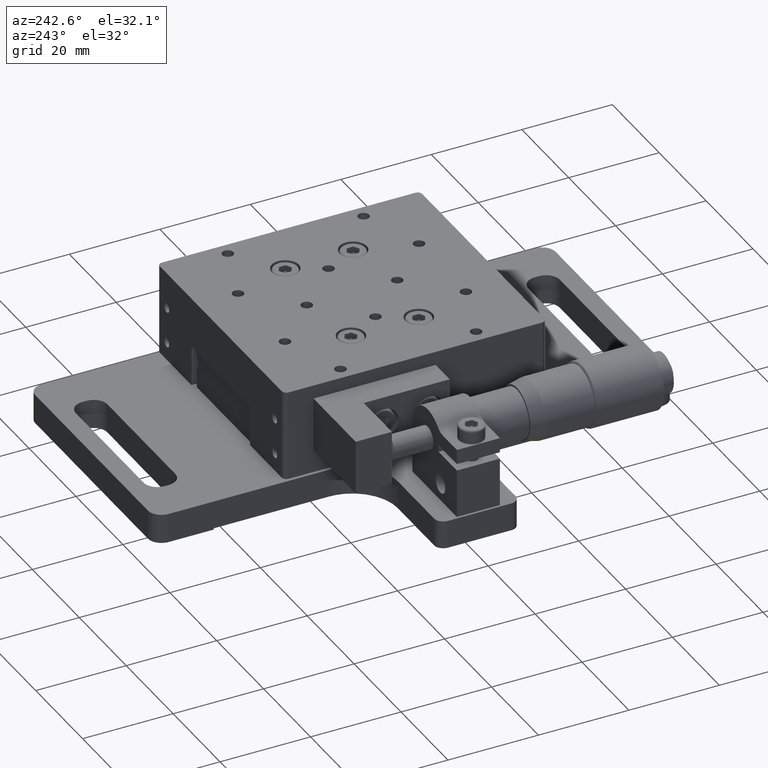
[diagram: clean part render]
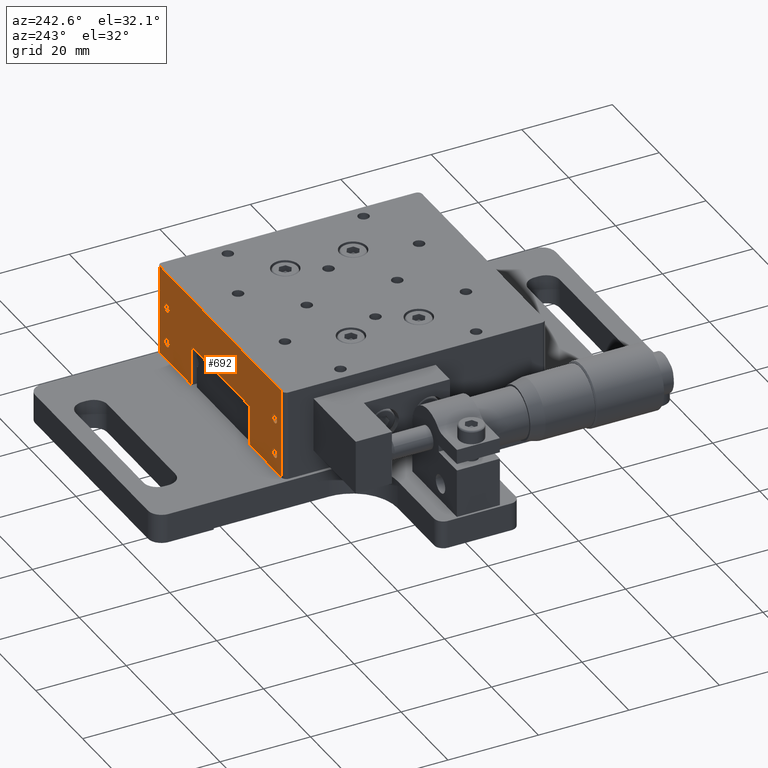
[diagram: same view with one face highlighted and labeled with its STEP entity id]
A machine part, auxiliary view. The second image highlights one B-rep face of the part: STEP entity #692.
In plain terms, the highlighted face is a freeform B-spline surface patch.
Its self-contained STEP definition (entity closure, byte-faithful):
#321=FACE_BOUND('',#2028,.T.);
#322=FACE_BOUND('',#2029,.T.);
#323=FACE_BOUND('',#2030,.T.);
#324=FACE_BOUND('',#2031,.T.);
#692=ADVANCED_FACE('',(#1313,#321,#322,#323,#324),#22482,.T.);
#1313=FACE_OUTER_BOUND('',#2027,.T.);
#2027=EDGE_LOOP('',(#4262,#4263,#4264,#4265,#4266,#4267,#4268,#4269));
#2028=EDGE_LOOP('',(#4270,#4271));
#2029=EDGE_LOOP('',(#4272,#4273));
#2030=EDGE_LOOP('',(#4274,#4275));
#2031=EDGE_LOOP('',(#4276,#4277));
#4262=ORIENTED_EDGE('',*,*,#19050,.F.);
#4263=ORIENTED_EDGE('',*,*,#18945,.F.);
#4264=ORIENTED_EDGE('',*,*,#19052,.F.);
#4265=ORIENTED_EDGE('',*,*,#19057,.F.);
#4266=ORIENTED_EDGE('',*,*,#19117,.F.);
#4267=ORIENTED_EDGE('',*,*,#19119,.F.);
#4268=ORIENTED_EDGE('',*,*,#19110,.F.);
#4269=ORIENTED_EDGE('',*,*,#18895,.F.);
#4270=ORIENTED_EDGE('',*,*,#19132,.T.);
#4271=ORIENTED_EDGE('',*,*,#18989,.F.);
#4272=ORIENTED_EDGE('',*,*,#19133,.T.);
#4273=ORIENTED_EDGE('',*,*,#18994,.F.);
#4274=ORIENTED_EDGE('',*,*,#19134,.T.);
#4275=ORIENTED_EDGE('',*,*,#19127,.F.);
#4276=ORIENTED_EDGE('',*,*,#19135,.T.);
#4277=ORIENTED_EDGE('',*,*,#19130,.F.);
#7139=PCURVE('',#22458,#10545);
#7214=PCURVE('',#22464,#10620);
#7273=PCURVE('',#22810,#10679);
#7278=PCURVE('',#22811,#10684);
#7442=PCURVE('',#22840,#10848);
#7447=PCURVE('',#22841,#10853);
#7454=PCURVE('',#22469,#10860);
#7613=PCURVE('',#22473,#11019);
#7621=PCURVE('',#22475,#11027);
#7625=PCURVE('',#22476,#11031);
#7662=PCURVE('',#22864,#11068);
#7666=PCURVE('',#22865,#11072);
#7668=PCURVE('',#22482,#11074);
#7669=PCURVE('',#22482,#11075);
#7670=PCURVE('',#22482,#11076);
#7671=PCURVE('',#22482,#11077);
#7672=PCURVE('',#22482,#11078);
#7673=PCURVE('',#22482,#11079);
#7674=PCURVE('',#22482,#11080);
#7675=PCURVE('',#22482,#11081);
#7676=PCURVE('',#22482,#11082);
#7677=PCURVE('',#22482,#11083);
#7678=PCURVE('',#22482,#11084);
#7679=PCURVE('',#22482,#11085);
#7680=PCURVE('',#22482,#11086);
#7681=PCURVE('',#22482,#11087);
#7682=PCURVE('',#22482,#11088);
#7683=PCURVE('',#22482,#11089);
#8591=PCURVE('',#22907,#11997);
#8596=PCURVE('',#22908,#12002);
#8611=PCURVE('',#22911,#12017);
#8615=PCURVE('',#22912,#12021);
#10545=DEFINITIONAL_REPRESENTATION('',(#13990),#46445);
#10620=DEFINITIONAL_REPRESENTATION('',(#14055),#46445);
#10679=DEFINITIONAL_REPRESENTATION('',(#14068),#46445);
#10684=DEFINITIONAL_REPRESENTATION('',(#14076),#46445);
#10848=DEFINITIONAL_REPRESENTATION('',(#14279),#46445);
#10853=DEFINITIONAL_REPRESENTATION('',(#14285),#46445);
#10860=DEFINITIONAL_REPRESENTATION('',(#14295),#46445);
#11019=DEFINITIONAL_REPRESENTATION('',(#14488),#46445);
#11027=DEFINITIONAL_REPRESENTATION('',(#14503),#46445);
#11031=DEFINITIONAL_REPRESENTATION('',(#14509),#46445);
#11068=DEFINITIONAL_REPRESENTATION('',(#14553),#46445);
#11072=DEFINITIONAL_REPRESENTATION('',(#14559),#46445);
#11074=DEFINITIONAL_REPRESENTATION('',(#14562),#46445);
#11075=DEFINITIONAL_REPRESENTATION('',(#14563),#46445);
#11076=DEFINITIONAL_REPRESENTATION('',(#14564),#46445);
#11077=DEFINITIONAL_REPRESENTATION('',(#14565),#46445);
#11078=DEFINITIONAL_REPRESENTATION('',(#14566),#46445);
#11079=DEFINITIONAL_REPRESENTATION('',(#14567),#46445);
#11080=DEFINITIONAL_REPRESENTATION('',(#14568),#46445);
#11081=DEFINITIONAL_REPRESENTATION('',(#14569),#46445);
#11082=DEFINITIONAL_REPRESENTATION('',(#20788),#46445);
#11083=DEFINITIONAL_REPRESENTATION('',(#20789),#46445);
#11084=DEFINITIONAL_REPRESENTATION('',(#20791),#46445);
#11085=DEFINITIONAL_REPRESENTATION('',(#20792),#46445);
#11086=DEFINITIONAL_REPRESENTATION('',(#20794),#46445);
#11087=DEFINITIONAL_REPRESENTATION('',(#20795),#46445);
#11088=DEFINITIONAL_REPRESENTATION('',(#20797),#46445);
#11089=DEFINITIONAL_REPRESENTATION('',(#20798),#46445);
#11997=DEFINITIONAL_REPRESENTATION('',(#15778),#46445);
#12002=DEFINITIONAL_REPRESENTATION('',(#15783),#46445);
#12017=DEFINITIONAL_REPRESENTATION('',(#15798),#46445);
#12021=DEFINITIONAL_REPRESENTATION('',(#15802),#46445);
#13989=B_SPLINE_CURVE_WITH_KNOTS('',1,(#35440,#35441),.UNSPECIFIED.,.F.,
 .F.,(2,2),(-13.4999999999999,0.),.UNSPECIFIED.);
#13990=B_SPLINE_CURVE_WITH_KNOTS('',1,(#35442,#35443),.UNSPECIFIED.,.F.,
 .F.,(2,2),(-13.4999999999999,0.),.UNSPECIFIED.);
#14054=B_SPLINE_CURVE_WITH_KNOTS('',1,(#35806,#35807),.UNSPECIFIED.,.F.,
 .F.,(2,2),(0.,52.),.UNSPECIFIED.);
#14055=B_SPLINE_CURVE_WITH_KNOTS('',1,(#35808,#35809),.UNSPECIFIED.,.F.,
 .F.,(2,2),(0.,52.),.UNSPECIFIED.);
#14068=B_SPLINE_CURVE_WITH_KNOTS('',1,(#36170,#36171),.UNSPECIFIED.,.F.,
 .F.,(2,2),(-3.16201300583813,0.),.UNSPECIFIED.);
#14076=B_SPLINE_CURVE_WITH_KNOTS('',1,(#36200,#36201),.UNSPECIFIED.,.F.,
 .F.,(2,2),(-3.16201300583813,0.),.UNSPECIFIED.);
#14278=B_SPLINE_CURVE_WITH_KNOTS('',1,(#36889,#36890),.UNSPECIFIED.,.F.,
 .F.,(2,2),(0.,20.),.UNSPECIFIED.);
#14279=B_SPLINE_CURVE_WITH_KNOTS('',1,(#36891,#36892),.UNSPECIFIED.,.F.,
 .F.,(2,2),(0.,20.),.UNSPECIFIED.);
#14284=B_SPLINE_CURVE_WITH_KNOTS('',1,(#36904,#36905),.UNSPECIFIED.,.F.,
 .F.,(2,2),(0.,20.),.UNSPECIFIED.);
#14285=B_SPLINE_CURVE_WITH_KNOTS('',1,(#36906,#36907),.UNSPECIFIED.,.F.,
 .F.,(2,2),(0.,20.),.UNSPECIFIED.);
#14294=B_SPLINE_CURVE_WITH_KNOTS('',1,(#36934,#36935),.UNSPECIFIED.,.F.,
 .F.,(2,2),(-13.5,0.),.UNSPECIFIED.);
#14295=B_SPLINE_CURVE_WITH_KNOTS('',1,(#36936,#36937),.UNSPECIFIED.,.F.,
 .F.,(2,2),(-13.5,0.),.UNSPECIFIED.);
#14487=B_SPLINE_CURVE_WITH_KNOTS('',1,(#37595,#37596),.UNSPECIFIED.,.F.,
 .F.,(2,2),(-8.9,0.),.UNSPECIFIED.);
#14488=B_SPLINE_CURVE_WITH_KNOTS('',1,(#37597,#37598),.UNSPECIFIED.,.F.,
 .F.,(2,2),(-8.9,0.),.UNSPECIFIED.);
#14502=B_SPLINE_CURVE_WITH_KNOTS('',1,(#37625,#37626),.UNSPECIFIED.,.F.,
 .F.,(2,2),(-8.90000000000001,0.),.UNSPECIFIED.);
#14503=B_SPLINE_CURVE_WITH_KNOTS('',1,(#37627,#37628),.UNSPECIFIED.,.F.,
 .F.,(2,2),(-8.90000000000001,0.),.UNSPECIFIED.);
#14508=B_SPLINE_CURVE_WITH_KNOTS('',1,(#37637,#37638),.UNSPECIFIED.,.F.,
 .F.,(2,2),(-25.,0.),.UNSPECIFIED.);
#14509=B_SPLINE_CURVE_WITH_KNOTS('',1,(#37639,#37640),.UNSPECIFIED.,.F.,
 .F.,(2,2),(-25.,0.),.UNSPECIFIED.);
#14553=B_SPLINE_CURVE_WITH_KNOTS('',1,(#37744,#37745),.UNSPECIFIED.,.F.,
 .F.,(2,2),(-3.14159265358979,0.),.UNSPECIFIED.);
#14559=B_SPLINE_CURVE_WITH_KNOTS('',1,(#37773,#37774),.UNSPECIFIED.,.F.,
 .F.,(2,2),(-3.14159265358979,0.),.UNSPECIFIED.);
#14562=B_SPLINE_CURVE_WITH_KNOTS('',1,(#37779,#37780),.UNSPECIFIED.,.F.,
 .F.,(2,2),(0.,20.),.UNSPECIFIED.);
#14563=B_SPLINE_CURVE_WITH_KNOTS('',1,(#37781,#37782),.UNSPECIFIED.,.F.,
 .F.,(2,2),(0.,52.),.UNSPECIFIED.);
#14564=B_SPLINE_CURVE_WITH_KNOTS('',1,(#37783,#37784),.UNSPECIFIED.,.F.,
 .F.,(2,2),(0.,20.),.UNSPECIFIED.);
#14565=B_SPLINE_CURVE_WITH_KNOTS('',1,(#37785,#37786),.UNSPECIFIED.,.F.,
 .F.,(2,2),(-13.5,0.),.UNSPECIFIED.);
#14566=B_SPLINE_CURVE_WITH_KNOTS('',1,(#37787,#37788),.UNSPECIFIED.,.F.,
 .F.,(2,2),(-8.90000000000001,0.),.UNSPECIFIED.);
#14567=B_SPLINE_CURVE_WITH_KNOTS('',1,(#37789,#37790),.UNSPECIFIED.,.F.,
 .F.,(2,2),(-25.,0.),.UNSPECIFIED.);
#14568=B_SPLINE_CURVE_WITH_KNOTS('',1,(#37791,#37792),.UNSPECIFIED.,.F.,
 .F.,(2,2),(-8.9,0.),.UNSPECIFIED.);
#14569=B_SPLINE_CURVE_WITH_KNOTS('',1,(#37793,#37794),.UNSPECIFIED.,.F.,
 .F.,(2,2),(-13.4999999999999,0.),.UNSPECIFIED.);
#15778=B_SPLINE_CURVE_WITH_KNOTS('',1,(#40820,#40821),.UNSPECIFIED.,.F.,
 .F.,(2,2),(0.,3.16201300583813),.UNSPECIFIED.);
#15783=B_SPLINE_CURVE_WITH_KNOTS('',1,(#40832,#40833),.UNSPECIFIED.,.F.,
 .F.,(2,2),(0.,3.16201300583813),.UNSPECIFIED.);
#15798=B_SPLINE_CURVE_WITH_KNOTS('',1,(#40904,#40905),.UNSPECIFIED.,.F.,
 .F.,(2,2),(0.,3.14159265358979),.UNSPECIFIED.);
#15802=B_SPLINE_CURVE_WITH_KNOTS('',1,(#40924,#40925),.UNSPECIFIED.,.F.,
 .F.,(2,2),(0.,3.14159265358979),.UNSPECIFIED.);
#17158=SURFACE_CURVE('',#13989,(#7139,#7675),.PCURVE_S1.);
#17208=SURFACE_CURVE('',#14054,(#7214,#7669),.PCURVE_S1.);
#17252=SURFACE_CURVE('',#20743,(#7273,#7677),.PCURVE_S1.);
#17257=SURFACE_CURVE('',#20745,(#7278,#7679),.PCURVE_S1.);
#17313=SURFACE_CURVE('',#14278,(#7442,#7668),.PCURVE_S1.);
#17315=SURFACE_CURVE('',#14284,(#7447,#7670),.PCURVE_S1.);
#17320=SURFACE_CURVE('',#14294,(#7454,#7671),.PCURVE_S1.);
#17373=SURFACE_CURVE('',#14487,(#7613,#7674),.PCURVE_S1.);
#17380=SURFACE_CURVE('',#14502,(#7621,#7672),.PCURVE_S1.);
#17382=SURFACE_CURVE('',#14508,(#7625,#7673),.PCURVE_S1.);
#17390=SURFACE_CURVE('',#20785,(#7662,#7681),.PCURVE_S1.);
#17393=SURFACE_CURVE('',#20786,(#7666,#7683),.PCURVE_S1.);
#17395=SURFACE_CURVE('',#20787,(#7676,#8591),.PCURVE_S1.);
#17396=SURFACE_CURVE('',#20790,(#7678,#8596),.PCURVE_S1.);
#17397=SURFACE_CURVE('',#20793,(#7680,#8611),.PCURVE_S1.);
#17398=SURFACE_CURVE('',#20796,(#7682,#8615),.PCURVE_S1.);
#18895=EDGE_CURVE('',#21734,#21735,#17158,.T.);
#18945=EDGE_CURVE('',#21772,#21773,#17208,.T.);
#18989=EDGE_CURVE('',#21801,#21800,#17252,.T.);
#18994=EDGE_CURVE('',#21804,#21803,#17257,.T.);
#19050=EDGE_CURVE('',#21773,#21734,#17313,.T.);
#19052=EDGE_CURVE('',#21840,#21772,#17315,.T.);
#19057=EDGE_CURVE('',#21843,#21840,#17320,.T.);
#19110=EDGE_CURVE('',#21735,#21879,#17373,.T.);
#19117=EDGE_CURVE('',#21883,#21843,#17380,.T.);
#19119=EDGE_CURVE('',#21879,#21883,#17382,.T.);
#19127=EDGE_CURVE('',#21887,#21886,#17390,.T.);
#19130=EDGE_CURVE('',#21889,#21888,#17393,.T.);
#19132=EDGE_CURVE('',#21801,#21800,#17395,.T.);
#19133=EDGE_CURVE('',#21804,#21803,#17396,.T.);
#19134=EDGE_CURVE('',#21887,#21886,#17397,.T.);
#19135=EDGE_CURVE('',#21889,#21888,#17398,.T.);
#20743=(
BOUNDED_CURVE()
B_SPLINE_CURVE(2,(#36165,#36166,#36167,#36168,#36169),.UNSPECIFIED.,.F.,
 .F.)
B_SPLINE_CURVE_WITH_KNOTS((3,2,3),(-3.16201300583813,-1.58100650291906,
0.),.UNSPECIFIED.)
CURVE()
GEOMETRIC_REPRESENTATION_ITEM()
RATIONAL_B_SPLINE_CURVE((1.,0.707106781186547,1.,0.707106781186547,1.))
REPRESENTATION_ITEM('')
);
#20745=(
BOUNDED_CURVE()
B_SPLINE_CURVE(2,(#36195,#36196,#36197,#36198,#36199),.UNSPECIFIED.,.F.,
 .F.)
B_SPLINE_CURVE_WITH_KNOTS((3,2,3),(-3.16201300583813,-1.58100650291906,
0.),.UNSPECIFIED.)
CURVE()
GEOMETRIC_REPRESENTATION_ITEM()
RATIONAL_B_SPLINE_CURVE((1.,0.707106781186548,1.,0.707106781186548,1.))
REPRESENTATION_ITEM('')
);
#20785=(
BOUNDED_CURVE()
B_SPLINE_CURVE(2,(#37739,#37740,#37741,#37742,#37743),.UNSPECIFIED.,.F.,
 .F.)
B_SPLINE_CURVE_WITH_KNOTS((3,2,3),(-3.14159265358979,-1.5707963267949,0.),
 .UNSPECIFIED.)
CURVE()
GEOMETRIC_REPRESENTATION_ITEM()
RATIONAL_B_SPLINE_CURVE((1.,0.707106781186548,1.,0.707106781186548,1.))
REPRESENTATION_ITEM('')
);
#20786=(
BOUNDED_CURVE()
B_SPLINE_CURVE(2,(#37768,#37769,#37770,#37771,#37772),.UNSPECIFIED.,.F.,
 .F.)
B_SPLINE_CURVE_WITH_KNOTS((3,2,3),(-3.14159265358979,-1.5707963267949,0.),
 .UNSPECIFIED.)
CURVE()
GEOMETRIC_REPRESENTATION_ITEM()
RATIONAL_B_SPLINE_CURVE((1.,0.707106781186548,1.,0.707106781186548,1.))
REPRESENTATION_ITEM('')
);
#20787=(
BOUNDED_CURVE()
B_SPLINE_CURVE(2,(#37795,#37796,#37797,#37798,#37799),.UNSPECIFIED.,.F.,
 .F.)
B_SPLINE_CURVE_WITH_KNOTS((3,2,3),(0.,1.58100650291906,3.16201300583813),
 .UNSPECIFIED.)
CURVE()
GEOMETRIC_REPRESENTATION_ITEM()
RATIONAL_B_SPLINE_CURVE((1.,0.707106781186548,1.,0.707106781186548,1.))
REPRESENTATION_ITEM('')
);
#20788=(
BOUNDED_CURVE()
B_SPLINE_CURVE(2,(#37800,#37801,#37802,#37803,#37804),.UNSPECIFIED.,.F.,
 .F.)
B_SPLINE_CURVE_WITH_KNOTS((3,2,3),(0.,1.58100650291906,3.16201300583813),
 .UNSPECIFIED.)
CURVE()
GEOMETRIC_REPRESENTATION_ITEM()
RATIONAL_B_SPLINE_CURVE((1.,0.707106781186548,1.,0.707106781186548,1.))
REPRESENTATION_ITEM('')
);
#20789=(
BOUNDED_CURVE()
B_SPLINE_CURVE(2,(#37805,#37806,#37807,#37808,#37809),.UNSPECIFIED.,.F.,
 .F.)
B_SPLINE_CURVE_WITH_KNOTS((3,2,3),(-3.16201300583813,-1.58100650291906,
0.),.UNSPECIFIED.)
CURVE()
GEOMETRIC_REPRESENTATION_ITEM()
RATIONAL_B_SPLINE_CURVE((1.,0.707106781186548,1.,0.707106781186548,1.))
REPRESENTATION_ITEM('')
);
#20790=(
BOUNDED_CURVE()
B_SPLINE_CURVE(2,(#37810,#37811,#37812,#37813,#37814),.UNSPECIFIED.,.F.,
 .F.)
B_SPLINE_CURVE_WITH_KNOTS((3,2,3),(0.,1.58100650291906,3.16201300583813),
 .UNSPECIFIED.)
CURVE()
GEOMETRIC_REPRESENTATION_ITEM()
RATIONAL_B_SPLINE_CURVE((1.,0.707106781186548,1.,0.707106781186548,1.))
REPRESENTATION_ITEM('')
);
#20791=(
BOUNDED_CURVE()
B_SPLINE_CURVE(2,(#37815,#37816,#37817,#37818,#37819),.UNSPECIFIED.,.F.,
 .F.)
B_SPLINE_CURVE_WITH_KNOTS((3,2,3),(0.,1.58100650291906,3.16201300583813),
 .UNSPECIFIED.)
CURVE()
GEOMETRIC_REPRESENTATION_ITEM()
RATIONAL_B_SPLINE_CURVE((1.,0.707106781186548,1.,0.707106781186548,1.))
REPRESENTATION_ITEM('')
);
#20792=(
BOUNDED_CURVE()
B_SPLINE_CURVE(2,(#37820,#37821,#37822,#37823,#37824),.UNSPECIFIED.,.F.,
 .F.)
B_SPLINE_CURVE_WITH_KNOTS((3,2,3),(-3.16201300583813,-1.58100650291906,
0.),.UNSPECIFIED.)
CURVE()
GEOMETRIC_REPRESENTATION_ITEM()
RATIONAL_B_SPLINE_CURVE((1.,0.707106781186548,1.,0.707106781186548,1.))
REPRESENTATION_ITEM('')
);
#20793=(
BOUNDED_CURVE()
B_SPLINE_CURVE(2,(#37825,#37826,#37827,#37828,#37829),.UNSPECIFIED.,.F.,
 .F.)
B_SPLINE_CURVE_WITH_KNOTS((3,2,3),(0.,1.5707963267949,3.14159265358979),
 .UNSPECIFIED.)
CURVE()
GEOMETRIC_REPRESENTATION_ITEM()
RATIONAL_B_SPLINE_CURVE((1.,0.707106781186547,1.,0.707106781186547,1.))
REPRESENTATION_ITEM('')
);
#20794=(
BOUNDED_CURVE()
B_SPLINE_CURVE(2,(#37830,#37831,#37832,#37833,#37834),.UNSPECIFIED.,.F.,
 .F.)
B_SPLINE_CURVE_WITH_KNOTS((3,2,3),(0.,1.5707963267949,3.14159265358979),
 .UNSPECIFIED.)
CURVE()
GEOMETRIC_REPRESENTATION_ITEM()
RATIONAL_B_SPLINE_CURVE((1.,0.707106781186548,1.,0.707106781186548,1.))
REPRESENTATION_ITEM('')
);
#20795=(
BOUNDED_CURVE()
B_SPLINE_CURVE(2,(#37835,#37836,#37837,#37838,#37839),.UNSPECIFIED.,.F.,
 .F.)
B_SPLINE_CURVE_WITH_KNOTS((3,2,3),(-3.14159265358979,-1.5707963267949,0.),
 .UNSPECIFIED.)
CURVE()
GEOMETRIC_REPRESENTATION_ITEM()
RATIONAL_B_SPLINE_CURVE((1.,0.707106781186548,1.,0.707106781186548,1.))
REPRESENTATION_ITEM('')
);
#20796=(
BOUNDED_CURVE()
B_SPLINE_CURVE(2,(#37840,#37841,#37842,#37843,#37844),.UNSPECIFIED.,.F.,
 .F.)
B_SPLINE_CURVE_WITH_KNOTS((3,2,3),(0.,1.5707963267949,3.14159265358979),
 .UNSPECIFIED.)
CURVE()
GEOMETRIC_REPRESENTATION_ITEM()
RATIONAL_B_SPLINE_CURVE((1.,0.707106781186548,1.,0.707106781186548,1.))
REPRESENTATION_ITEM('')
);
#20797=(
BOUNDED_CURVE()
B_SPLINE_CURVE(2,(#37845,#37846,#37847,#37848,#37849),.UNSPECIFIED.,.F.,
 .F.)
B_SPLINE_CURVE_WITH_KNOTS((3,2,3),(0.,1.5707963267949,3.14159265358979),
 .UNSPECIFIED.)
CURVE()
GEOMETRIC_REPRESENTATION_ITEM()
RATIONAL_B_SPLINE_CURVE((1.,0.707106781186548,1.,0.707106781186548,1.))
REPRESENTATION_ITEM('')
);
#20798=(
BOUNDED_CURVE()
B_SPLINE_CURVE(2,(#37850,#37851,#37852,#37853,#37854),.UNSPECIFIED.,.F.,
 .F.)
B_SPLINE_CURVE_WITH_KNOTS((3,2,3),(-3.14159265358979,-1.5707963267949,0.),
 .UNSPECIFIED.)
CURVE()
GEOMETRIC_REPRESENTATION_ITEM()
RATIONAL_B_SPLINE_CURVE((1.,0.707106781186548,1.,0.707106781186548,1.))
REPRESENTATION_ITEM('')
);
#21734=VERTEX_POINT('',#28969);
#21735=VERTEX_POINT('',#28970);
#21772=VERTEX_POINT('',#29007);
#21773=VERTEX_POINT('',#29008);
#21800=VERTEX_POINT('',#29035);
#21801=VERTEX_POINT('',#29036);
#21803=VERTEX_POINT('',#29038);
#21804=VERTEX_POINT('',#29039);
#21840=VERTEX_POINT('',#29075);
#21843=VERTEX_POINT('',#29078);
#21879=VERTEX_POINT('',#29114);
#21883=VERTEX_POINT('',#29118);
#21886=VERTEX_POINT('',#29121);
#21887=VERTEX_POINT('',#29122);
#21888=VERTEX_POINT('',#29123);
#21889=VERTEX_POINT('',#29124);
#22458=B_SPLINE_SURFACE_WITH_KNOTS('',1,1,((#25959,#25960),(#25961,#25962)),
 .UNSPECIFIED.,.F.,.F.,.F.,(2,2),(2,2),(-8.2743956043956,61.5656043956044),
(-28.5699999999999,-10.93),.UNSPECIFIED.);
#22464=B_SPLINE_SURFACE_WITH_KNOTS('',1,1,((#26127,#26128),(#26129,#26130)),
 .UNSPECIFIED.,.F.,.F.,.F.,(2,2),(2,2),(-32.52,32.5200000000001),(-34.92,
34.92),.UNSPECIFIED.);
#22469=B_SPLINE_SURFACE_WITH_KNOTS('',1,1,((#26725,#26726),(#26727,#26728)),
 .UNSPECIFIED.,.F.,.F.,.F.,(2,2),(2,2),(-8.27439560439561,61.5656043956044),
(10.9299999999999,28.5700000000001),.UNSPECIFIED.);
#22473=B_SPLINE_SURFACE_WITH_KNOTS('',1,1,((#27121,#27122),(#27123,#27124)),
 .UNSPECIFIED.,.F.,.F.,.F.,(2,2),(2,2),(51.83,58.67),(-9.91,1.01),
 .UNSPECIFIED.);
#22475=B_SPLINE_SURFACE_WITH_KNOTS('',1,1,((#27129,#27130),(#27131,#27132)),
 .UNSPECIFIED.,.F.,.F.,.F.,(2,2),(2,2),(51.83,58.67),(-9.91000000000001,
1.01),.UNSPECIFIED.);
#22476=B_SPLINE_SURFACE_WITH_KNOTS('',1,1,((#27133,#27134),(#27135,#27136)),
 .UNSPECIFIED.,.F.,.F.,.F.,(2,2),(2,2),(-27.62,2.62000000000001),(-58.67,
-51.83),.UNSPECIFIED.);
#22482=B_SPLINE_SURFACE_WITH_KNOTS('',1,1,((#27177,#27178),(#27179,#27180)),
 .UNSPECIFIED.,.F.,.F.,.F.,(2,2),(2,2),(-20.12,4.12000000000001),(-57.32,
5.32),.UNSPECIFIED.);
#22810=(
BOUNDED_SURFACE()
B_SPLINE_SURFACE(1,2,((#26149,#26150,#26151,#26152,#26153),(#26154,#26155,
#26156,#26157,#26158)),.UNSPECIFIED.,.F.,.F.,.F.)
B_SPLINE_SURFACE_WITH_KNOTS((2,2),(3,2,3),(0.,5.00865525786599),(0.,1.5707963267949,
3.14159265358979),.UNSPECIFIED.)
GEOMETRIC_REPRESENTATION_ITEM()
RATIONAL_B_SPLINE_SURFACE(((1.,0.707106781186548,1.,0.707106781186548,1.),
(1.,0.707106781186548,1.,0.707106781186548,1.)))
REPRESENTATION_ITEM('')
SURFACE()
);
#22811=(
BOUNDED_SURFACE()
B_SPLINE_SURFACE(1,2,((#26159,#26160,#26161,#26162,#26163),(#26164,#26165,
#26166,#26167,#26168)),.UNSPECIFIED.,.F.,.F.,.F.)
B_SPLINE_SURFACE_WITH_KNOTS((2,2),(3,2,3),(0.,5.008655257866),(0.,1.5707963267949,
3.14159265358979),.UNSPECIFIED.)
GEOMETRIC_REPRESENTATION_ITEM()
RATIONAL_B_SPLINE_SURFACE(((1.,0.707106781186548,1.,0.707106781186548,1.),
(1.,0.707106781186548,1.,0.707106781186548,1.)))
REPRESENTATION_ITEM('')
SURFACE()
);
#22840=(
BOUNDED_SURFACE()
B_SPLINE_SURFACE(2,1,((#26689,#26690),(#26691,#26692),(#26693,#26694),(#26695,
#26696),(#26697,#26698),(#26699,#26700),(#26701,#26702),(#26703,#26704),
(#26705,#26706)),.UNSPECIFIED.,.T.,.F.,.F.)
B_SPLINE_SURFACE_WITH_KNOTS((3,2,2,2,3),(2,2),(0.,1.5707963267949,3.14159265358979,
4.71238898038469,6.28318530717959),(0.,24.24),.UNSPECIFIED.)
GEOMETRIC_REPRESENTATION_ITEM()
RATIONAL_B_SPLINE_SURFACE(((1.,1.),(0.707106781186548,0.707106781186548),
(1.,1.),(0.707106781186548,0.707106781186548),(1.,1.),(0.707106781186548,
0.707106781186548),(1.,1.),(0.707106781186548,0.707106781186548),(1.,1.)))
REPRESENTATION_ITEM('')
SURFACE()
);
#22841=(
BOUNDED_SURFACE()
B_SPLINE_SURFACE(2,1,((#26707,#26708),(#26709,#26710),(#26711,#26712),(#26713,
#26714),(#26715,#26716),(#26717,#26718),(#26719,#26720),(#26721,#26722),
(#26723,#26724)),.UNSPECIFIED.,.T.,.F.,.F.)
B_SPLINE_SURFACE_WITH_KNOTS((3,2,2,2,3),(2,2),(0.,1.5707963267949,3.14159265358979,
4.71238898038469,6.28318530717959),(0.,24.24),.UNSPECIFIED.)
GEOMETRIC_REPRESENTATION_ITEM()
RATIONAL_B_SPLINE_SURFACE(((1.,1.),(0.707106781186548,0.707106781186548),
(1.,1.),(0.707106781186548,0.707106781186548),(1.,1.),(0.707106781186548,
0.707106781186548),(1.,1.),(0.707106781186548,0.707106781186548),(1.,1.)))
REPRESENTATION_ITEM('')
SURFACE()
);
#22864=(
BOUNDED_SURFACE()
B_SPLINE_SURFACE(1,2,((#27157,#27158,#27159,#27160,#27161),(#27162,#27163,
#27164,#27165,#27166)),.UNSPECIFIED.,.F.,.F.,.F.)
B_SPLINE_SURFACE_WITH_KNOTS((2,2),(3,2,3),(0.,5.94000000000001),(0.,1.5707963267949,
3.14159265358979),.UNSPECIFIED.)
GEOMETRIC_REPRESENTATION_ITEM()
RATIONAL_B_SPLINE_SURFACE(((1.,0.707106781186548,1.,0.707106781186548,1.),
(1.,0.707106781186548,1.,0.707106781186548,1.)))
REPRESENTATION_ITEM('')
SURFACE()
);
#22865=(
BOUNDED_SURFACE()
B_SPLINE_SURFACE(1,2,((#27167,#27168,#27169,#27170,#27171),(#27172,#27173,
#27174,#27175,#27176)),.UNSPECIFIED.,.F.,.F.,.F.)
B_SPLINE_SURFACE_WITH_KNOTS((2,2),(3,2,3),(0.,5.94000000000006),(0.,1.5707963267949,
3.14159265358979),.UNSPECIFIED.)
GEOMETRIC_REPRESENTATION_ITEM()
RATIONAL_B_SPLINE_SURFACE(((1.,0.707106781186548,1.,0.707106781186548,1.),
(1.,0.707106781186548,1.,0.707106781186548,1.)))
REPRESENTATION_ITEM('')
SURFACE()
);
#22907=(
BOUNDED_SURFACE()
B_SPLINE_SURFACE(1,2,((#28329,#28330,#28331,#28332,#28333),(#28334,#28335,
#28336,#28337,#28338)),.UNSPECIFIED.,.F.,.F.,.F.)
B_SPLINE_SURFACE_WITH_KNOTS((2,2),(3,2,3),(0.,5.00865525786599),(3.14159265358979,
4.71238898038469,6.28318530717959),.UNSPECIFIED.)
GEOMETRIC_REPRESENTATION_ITEM()
RATIONAL_B_SPLINE_SURFACE(((1.,0.707106781186548,1.,0.707106781186548,1.),
(1.,0.707106781186548,1.,0.707106781186548,1.)))
REPRESENTATION_ITEM('')
SURFACE()
);
#22908=(
BOUNDED_SURFACE()
B_SPLINE_SURFACE(1,2,((#28339,#28340,#28341,#28342,#28343),(#28344,#28345,
#28346,#28347,#28348)),.UNSPECIFIED.,.F.,.F.,.F.)
B_SPLINE_SURFACE_WITH_KNOTS((2,2),(3,2,3),(0.,5.008655257866),(3.14159265358979,
4.71238898038469,6.28318530717959),.UNSPECIFIED.)
GEOMETRIC_REPRESENTATION_ITEM()
RATIONAL_B_SPLINE_SURFACE(((1.,0.707106781186548,1.,0.707106781186548,1.),
(1.,0.707106781186548,1.,0.707106781186548,1.)))
REPRESENTATION_ITEM('')
SURFACE()
);
#22911=(
BOUNDED_SURFACE()
B_SPLINE_SURFACE(1,2,((#28369,#28370,#28371,#28372,#28373),(#28374,#28375,
#28376,#28377,#28378)),.UNSPECIFIED.,.F.,.F.,.F.)
B_SPLINE_SURFACE_WITH_KNOTS((2,2),(3,2,3),(0.,5.94000000000001),(3.14159265358979,
4.71238898038469,6.28318530717959),.UNSPECIFIED.)
GEOMETRIC_REPRESENTATION_ITEM()
RATIONAL_B_SPLINE_SURFACE(((1.,0.707106781186548,1.,0.707106781186548,1.),
(1.,0.707106781186548,1.,0.707106781186548,1.)))
REPRESENTATION_ITEM('')
SURFACE()
);
#22912=(
BOUNDED_SURFACE()
B_SPLINE_SURFACE(1,2,((#28379,#28380,#28381,#28382,#28383),(#28384,#28385,
#28386,#28387,#28388)),.UNSPECIFIED.,.F.,.F.,.F.)
B_SPLINE_SURFACE_WITH_KNOTS((2,2),(3,2,3),(0.,5.94000000000006),(3.14159265358979,
4.71238898038469,6.28318530717959),.UNSPECIFIED.)
GEOMETRIC_REPRESENTATION_ITEM()
RATIONAL_B_SPLINE_SURFACE(((1.,0.707106781186548,1.,0.707106781186548,1.),
(1.,0.707106781186548,1.,0.707106781186548,1.)))
REPRESENTATION_ITEM('')
SURFACE()
);
#25959=CARTESIAN_POINT('',(-27.9429506502019,-7.76680358437653,50.57));
#25960=CARTESIAN_POINT('',(-10.302950650202,-7.76680358437653,50.57));
#25961=CARTESIAN_POINT('',(-27.9429506502019,-7.76680358437653,-19.27));
#25962=CARTESIAN_POINT('',(-10.302950650202,-7.76680358437653,-19.27));
#26127=CARTESIAN_POINT('',(-31.8929506502019,12.2331964156235,50.57));
#26128=CARTESIAN_POINT('',(-31.8929506502019,12.2331964156235,-19.27));
#26129=CARTESIAN_POINT('',(33.1470493497981,12.2331964156235,50.57));
#26130=CARTESIAN_POINT('',(33.1470493497981,12.2331964156235,-19.27));
#26149=CARTESIAN_POINT('',(-23.3794506502019,-3.76680358437653,-8.85873268028951));
#26150=CARTESIAN_POINT('',(-23.3794506502019,-2.76030358437653,-8.85873268028951));
#26151=CARTESIAN_POINT('',(-22.3729506502019,-2.76030358437653,-8.85873268028951));
#26152=CARTESIAN_POINT('',(-21.3664506502019,-2.76030358437653,-8.85873268028951));
#26153=CARTESIAN_POINT('',(-21.3664506502019,-3.76680358437653,-8.85873268028951));
#26154=CARTESIAN_POINT('',(-23.3794506502019,-3.76680358437653,-13.8673879381555));
#26155=CARTESIAN_POINT('',(-23.3794506502019,-2.76030358437653,-13.8673879381555));
#26156=CARTESIAN_POINT('',(-22.3729506502019,-2.76030358437653,-13.8673879381555));
#26157=CARTESIAN_POINT('',(-21.3664506502019,-2.76030358437653,-13.8673879381555));
#26158=CARTESIAN_POINT('',(-21.3664506502019,-3.76680358437653,-13.8673879381555));
#26159=CARTESIAN_POINT('',(22.620549349798,-3.76680358437652,-8.8587326802895));
#26160=CARTESIAN_POINT('',(22.620549349798,-2.76030358437652,-8.8587326802895));
#26161=CARTESIAN_POINT('',(23.627049349798,-2.76030358437652,-8.8587326802895));
#26162=CARTESIAN_POINT('',(24.633549349798,-2.76030358437652,-8.8587326802895));
#26163=CARTESIAN_POINT('',(24.633549349798,-3.76680358437652,-8.8587326802895));
#26164=CARTESIAN_POINT('',(22.620549349798,-3.76680358437652,-13.8673879381555));
#26165=CARTESIAN_POINT('',(22.620549349798,-2.76030358437652,-13.8673879381555));
#26166=CARTESIAN_POINT('',(23.627049349798,-2.76030358437652,-13.8673879381555));
#26167=CARTESIAN_POINT('',(24.633549349798,-2.76030358437652,-13.8673879381555));
#26168=CARTESIAN_POINT('',(24.633549349798,-3.76680358437652,-13.8673879381555));
#26689=CARTESIAN_POINT('',(-24.3729506502019,-9.88680358437653,-12.35));
#26690=CARTESIAN_POINT('',(-24.3729506502019,14.3531964156235,-12.35));
#26691=CARTESIAN_POINT('',(-24.3729506502019,-9.88680358437653,-13.35));
#26692=CARTESIAN_POINT('',(-24.3729506502019,14.3531964156235,-13.35));
#26693=CARTESIAN_POINT('',(-25.3729506502019,-9.88680358437653,-13.35));
#26694=CARTESIAN_POINT('',(-25.3729506502019,14.3531964156235,-13.35));
#26695=CARTESIAN_POINT('',(-26.3729506502019,-9.88680358437653,-13.35));
#26696=CARTESIAN_POINT('',(-26.3729506502019,14.3531964156235,-13.35));
#26697=CARTESIAN_POINT('',(-26.3729506502019,-9.88680358437653,-12.35));
#26698=CARTESIAN_POINT('',(-26.3729506502019,14.3531964156235,-12.35));
#26699=CARTESIAN_POINT('',(-26.3729506502019,-9.88680358437653,-11.35));
#26700=CARTESIAN_POINT('',(-26.3729506502019,14.3531964156235,-11.35));
#26701=CARTESIAN_POINT('',(-25.3729506502019,-9.88680358437653,-11.35));
#26702=CARTESIAN_POINT('',(-25.3729506502019,14.3531964156235,-11.35));
#26703=CARTESIAN_POINT('',(-24.3729506502019,-9.88680358437653,-11.35));
#26704=CARTESIAN_POINT('',(-24.3729506502019,14.3531964156235,-11.35));
#26705=CARTESIAN_POINT('',(-24.3729506502019,-9.88680358437653,-12.35));
#26706=CARTESIAN_POINT('',(-24.3729506502019,14.3531964156235,-12.35));
#26707=CARTESIAN_POINT('',(25.627049349798,14.3531964156235,-12.35));
#26708=CARTESIAN_POINT('',(25.627049349798,-9.88680358437652,-12.35));
#26709=CARTESIAN_POINT('',(25.627049349798,14.3531964156235,-13.35));
#26710=CARTESIAN_POINT('',(25.627049349798,-9.88680358437652,-13.35));
#26711=CARTESIAN_POINT('',(26.627049349798,14.3531964156235,-13.35));
#26712=CARTESIAN_POINT('',(26.627049349798,-9.88680358437652,-13.35));
#26713=CARTESIAN_POINT('',(27.627049349798,14.3531964156235,-13.35));
#26714=CARTESIAN_POINT('',(27.627049349798,-9.88680358437652,-13.35));
#26715=CARTESIAN_POINT('',(27.627049349798,14.3531964156235,-12.35));
#26716=CARTESIAN_POINT('',(27.627049349798,-9.88680358437652,-12.35));
#26717=CARTESIAN_POINT('',(27.627049349798,14.3531964156235,-11.35));
#26718=CARTESIAN_POINT('',(27.627049349798,-9.88680358437652,-11.35));
#26719=CARTESIAN_POINT('',(26.627049349798,14.3531964156235,-11.35));
#26720=CARTESIAN_POINT('',(26.627049349798,-9.88680358437652,-11.35));
#26721=CARTESIAN_POINT('',(25.627049349798,14.3531964156235,-11.35));
#26722=CARTESIAN_POINT('',(25.627049349798,-9.88680358437652,-11.35));
#26723=CARTESIAN_POINT('',(25.627049349798,14.3531964156235,-12.35));
#26724=CARTESIAN_POINT('',(25.627049349798,-9.88680358437652,-12.35));
#26725=CARTESIAN_POINT('',(11.557049349798,-7.76680358437653,50.57));
#26726=CARTESIAN_POINT('',(29.1970493497981,-7.76680358437653,50.57));
#26727=CARTESIAN_POINT('',(11.557049349798,-7.76680358437653,-19.27));
#26728=CARTESIAN_POINT('',(29.1970493497981,-7.76680358437653,-19.27));
#27121=CARTESIAN_POINT('',(-11.872950650202,-8.77680358437653,-7.17999999999999));
#27122=CARTESIAN_POINT('',(-11.872950650202,2.14319641562347,-7.17999999999999));
#27123=CARTESIAN_POINT('',(-11.872950650202,-8.77680358437653,-14.02));
#27124=CARTESIAN_POINT('',(-11.872950650202,2.14319641562347,-14.02));
#27129=CARTESIAN_POINT('',(13.127049349798,2.14319641562348,-7.18));
#27130=CARTESIAN_POINT('',(13.127049349798,-8.77680358437653,-7.18));
#27131=CARTESIAN_POINT('',(13.127049349798,2.14319641562348,-14.02));
#27132=CARTESIAN_POINT('',(13.127049349798,-8.77680358437653,-14.02));
#27133=CARTESIAN_POINT('',(-14.492950650202,1.13319641562347,-14.02));
#27134=CARTESIAN_POINT('',(-14.492950650202,1.13319641562347,-7.17999999999999));
#27135=CARTESIAN_POINT('',(15.747049349798,1.13319641562348,-14.02));
#27136=CARTESIAN_POINT('',(15.747049349798,1.13319641562348,-7.17999999999999));
#27157=CARTESIAN_POINT('',(22.627049349798,4.23319641562348,-8.00499999999999));
#27158=CARTESIAN_POINT('',(22.627049349798,5.23319641562348,-8.00499999999999));
#27159=CARTESIAN_POINT('',(23.627049349798,5.23319641562348,-8.00499999999999));
#27160=CARTESIAN_POINT('',(24.627049349798,5.23319641562348,-8.00499999999999));
#27161=CARTESIAN_POINT('',(24.627049349798,4.23319641562348,-8.00499999999999));
#27162=CARTESIAN_POINT('',(22.627049349798,4.23319641562348,-13.945));
#27163=CARTESIAN_POINT('',(22.627049349798,5.23319641562348,-13.945));
#27164=CARTESIAN_POINT('',(23.627049349798,5.23319641562348,-13.945));
#27165=CARTESIAN_POINT('',(24.627049349798,5.23319641562348,-13.945));
#27166=CARTESIAN_POINT('',(24.627049349798,4.23319641562348,-13.945));
#27167=CARTESIAN_POINT('',(-23.3729506502019,4.23319641562347,-8.00499999999995));
#27168=CARTESIAN_POINT('',(-23.3729506502019,5.23319641562347,-8.00499999999995));
#27169=CARTESIAN_POINT('',(-22.3729506502019,5.23319641562347,-8.00499999999995));
#27170=CARTESIAN_POINT('',(-21.3729506502019,5.23319641562347,-8.00499999999995));
#27171=CARTESIAN_POINT('',(-21.3729506502019,4.23319641562347,-8.00499999999995));
#27172=CARTESIAN_POINT('',(-23.3729506502019,4.23319641562347,-13.945));
#27173=CARTESIAN_POINT('',(-23.3729506502019,5.23319641562347,-13.945));
#27174=CARTESIAN_POINT('',(-22.3729506502019,5.23319641562347,-13.945));
#27175=CARTESIAN_POINT('',(-21.3729506502019,5.23319641562347,-13.945));
#27176=CARTESIAN_POINT('',(-21.3729506502019,4.23319641562347,-13.945));
#27177=CARTESIAN_POINT('',(-30.692950650202,-9.88680358437654,-13.35));
#27178=CARTESIAN_POINT('',(31.947049349798,-9.88680358437653,-13.35));
#27179=CARTESIAN_POINT('',(-30.692950650202,14.3531964156235,-13.35));
#27180=CARTESIAN_POINT('',(31.947049349798,14.3531964156235,-13.35));
#28329=CARTESIAN_POINT('',(-21.3664506502019,-3.76680358437653,-8.85873268028951));
#28330=CARTESIAN_POINT('',(-21.3664506502019,-4.77330358437653,-8.85873268028951));
#28331=CARTESIAN_POINT('',(-22.3729506502019,-4.77330358437653,-8.85873268028951));
#28332=CARTESIAN_POINT('',(-23.3794506502019,-4.77330358437653,-8.85873268028951));
#28333=CARTESIAN_POINT('',(-23.3794506502019,-3.76680358437653,-8.85873268028951));
#28334=CARTESIAN_POINT('',(-21.3664506502019,-3.76680358437653,-13.8673879381555));
#28335=CARTESIAN_POINT('',(-21.3664506502019,-4.77330358437653,-13.8673879381555));
#28336=CARTESIAN_POINT('',(-22.3729506502019,-4.77330358437653,-13.8673879381555));
#28337=CARTESIAN_POINT('',(-23.3794506502019,-4.77330358437653,-13.8673879381555));
#28338=CARTESIAN_POINT('',(-23.3794506502019,-3.76680358437653,-13.8673879381555));
#28339=CARTESIAN_POINT('',(24.633549349798,-3.76680358437652,-8.8587326802895));
#28340=CARTESIAN_POINT('',(24.633549349798,-4.77330358437652,-8.8587326802895));
#28341=CARTESIAN_POINT('',(23.627049349798,-4.77330358437652,-8.8587326802895));
#28342=CARTESIAN_POINT('',(22.620549349798,-4.77330358437652,-8.8587326802895));
#28343=CARTESIAN_POINT('',(22.620549349798,-3.76680358437652,-8.8587326802895));
#28344=CARTESIAN_POINT('',(24.633549349798,-3.76680358437652,-13.8673879381555));
#28345=CARTESIAN_POINT('',(24.633549349798,-4.77330358437652,-13.8673879381555));
#28346=CARTESIAN_POINT('',(23.627049349798,-4.77330358437652,-13.8673879381555));
#28347=CARTESIAN_POINT('',(22.620549349798,-4.77330358437652,-13.8673879381555));
#28348=CARTESIAN_POINT('',(22.620549349798,-3.76680358437652,-13.8673879381555));
#28369=CARTESIAN_POINT('',(24.627049349798,4.23319641562348,-8.00499999999999));
#28370=CARTESIAN_POINT('',(24.627049349798,3.23319641562348,-8.00499999999999));
#28371=CARTESIAN_POINT('',(23.627049349798,3.23319641562348,-8.00499999999999));
#28372=CARTESIAN_POINT('',(22.627049349798,3.23319641562348,-8.00499999999999));
#28373=CARTESIAN_POINT('',(22.627049349798,4.23319641562348,-8.00499999999999));
#28374=CARTESIAN_POINT('',(24.627049349798,4.23319641562348,-13.945));
#28375=CARTESIAN_POINT('',(24.627049349798,3.23319641562348,-13.945));
#28376=CARTESIAN_POINT('',(23.627049349798,3.23319641562348,-13.945));
#28377=CARTESIAN_POINT('',(22.627049349798,3.23319641562348,-13.945));
#28378=CARTESIAN_POINT('',(22.627049349798,4.23319641562348,-13.945));
#28379=CARTESIAN_POINT('',(-21.3729506502019,4.23319641562347,-8.00499999999995));
#28380=CARTESIAN_POINT('',(-21.3729506502019,3.23319641562347,-8.00499999999995));
#28381=CARTESIAN_POINT('',(-22.3729506502019,3.23319641562347,-8.00499999999995));
#28382=CARTESIAN_POINT('',(-23.3729506502019,3.23319641562347,-8.00499999999995));
#28383=CARTESIAN_POINT('',(-23.3729506502019,4.23319641562347,-8.00499999999995));
#28384=CARTESIAN_POINT('',(-21.3729506502019,4.23319641562347,-13.945));
#28385=CARTESIAN_POINT('',(-21.3729506502019,3.23319641562347,-13.945));
#28386=CARTESIAN_POINT('',(-22.3729506502019,3.23319641562347,-13.945));
#28387=CARTESIAN_POINT('',(-23.3729506502019,3.23319641562347,-13.945));
#28388=CARTESIAN_POINT('',(-23.3729506502019,4.23319641562347,-13.945));
#28969=CARTESIAN_POINT('',(-25.3729506502019,-7.76680358437653,-13.35));
#28970=CARTESIAN_POINT('',(-11.872950650202,-7.76680358437653,-13.35));
#29007=CARTESIAN_POINT('',(26.627049349798,12.2331964156235,-13.35));
#29008=CARTESIAN_POINT('',(-25.372950650202,12.2331964156235,-13.35));
#29035=CARTESIAN_POINT('',(-21.3664506502019,-3.76680358437653,-13.35));
#29036=CARTESIAN_POINT('',(-23.3794506502019,-3.76680358437653,-13.35));
#29038=CARTESIAN_POINT('',(24.633549349798,-3.76680358437652,-13.35));
#29039=CARTESIAN_POINT('',(22.620549349798,-3.76680358437652,-13.35));
#29075=CARTESIAN_POINT('',(26.627049349798,-7.76680358437651,-13.35));
#29078=CARTESIAN_POINT('',(13.127049349798,-7.76680358437653,-13.35));
#29114=CARTESIAN_POINT('',(-11.872950650202,1.13319641562347,-13.35));
#29118=CARTESIAN_POINT('',(13.127049349798,1.13319641562348,-13.35));
#29121=CARTESIAN_POINT('',(24.627049349798,4.23319641562348,-13.35));
#29122=CARTESIAN_POINT('',(22.627049349798,4.23319641562348,-13.35));
#29123=CARTESIAN_POINT('',(-21.3729506502019,4.23319641562347,-13.35));
#29124=CARTESIAN_POINT('',(-23.3729506502019,4.23319641562347,-13.35));
#35440=CARTESIAN_POINT('',(-25.3729506502019,-7.76680358437653,-13.35));
#35441=CARTESIAN_POINT('',(-11.872950650202,-7.76680358437653,-13.35));
#35442=CARTESIAN_POINT('',(55.6456043956044,-25.9999999999999));
#35443=CARTESIAN_POINT('',(55.6456043956044,-12.5));
#35806=CARTESIAN_POINT('',(26.627049349798,12.2331964156235,-13.35));
#35807=CARTESIAN_POINT('',(-25.372950650202,12.2331964156235,-13.35));
#35808=CARTESIAN_POINT('',(26.,29.));
#35809=CARTESIAN_POINT('',(-26.0000000000001,29.));
#36165=CARTESIAN_POINT('',(-23.3794506502019,-3.76680358437653,-13.35));
#36166=CARTESIAN_POINT('',(-23.3794506502019,-2.76030358437653,-13.35));
#36167=CARTESIAN_POINT('',(-22.3729506502019,-2.76030358437653,-13.35));
#36168=CARTESIAN_POINT('',(-21.3664506502019,-2.76030358437653,-13.35));
#36169=CARTESIAN_POINT('',(-21.3664506502019,-3.76680358437653,-13.35));
#36170=CARTESIAN_POINT('',(4.49126731971049,0.));
#36171=CARTESIAN_POINT('',(4.49126731971049,3.14159265358979));
#36195=CARTESIAN_POINT('',(22.620549349798,-3.76680358437652,-13.35));
#36196=CARTESIAN_POINT('',(22.620549349798,-2.76030358437652,-13.35));
#36197=CARTESIAN_POINT('',(23.627049349798,-2.76030358437652,-13.35));
#36198=CARTESIAN_POINT('',(24.633549349798,-2.76030358437652,-13.35));
#36199=CARTESIAN_POINT('',(24.633549349798,-3.76680358437652,-13.35));
#36200=CARTESIAN_POINT('',(4.4912673197105,0.));
#36201=CARTESIAN_POINT('',(4.4912673197105,3.14159265358979));
#36889=CARTESIAN_POINT('',(-25.372950650202,12.2331964156235,-13.35));
#36890=CARTESIAN_POINT('',(-25.3729506502019,-7.76680358437653,-13.35));
#36891=CARTESIAN_POINT('',(1.5707963267949,22.12));
#36892=CARTESIAN_POINT('',(1.5707963267949,2.12));
#36904=CARTESIAN_POINT('',(26.627049349798,-7.76680358437651,-13.35));
#36905=CARTESIAN_POINT('',(26.627049349798,12.2331964156235,-13.35));
#36906=CARTESIAN_POINT('',(1.5707963267949,22.12));
#36907=CARTESIAN_POINT('',(1.5707963267949,2.12));
#36934=CARTESIAN_POINT('',(13.127049349798,-7.76680358437653,-13.35));
#36935=CARTESIAN_POINT('',(26.627049349798,-7.76680358437651,-13.35));
#36936=CARTESIAN_POINT('',(55.6456043956044,12.5));
#36937=CARTESIAN_POINT('',(55.6456043956044,26.));
#37595=CARTESIAN_POINT('',(-11.872950650202,-7.76680358437653,-13.35));
#37596=CARTESIAN_POINT('',(-11.872950650202,1.13319641562347,-13.35));
#37597=CARTESIAN_POINT('',(58.,-8.9));
#37598=CARTESIAN_POINT('',(58.,-6.97815069916937E-31));
#37625=CARTESIAN_POINT('',(13.127049349798,1.13319641562348,-13.35));
#37626=CARTESIAN_POINT('',(13.127049349798,-7.76680358437653,-13.35));
#37627=CARTESIAN_POINT('',(58.,-8.90000000000001));
#37628=CARTESIAN_POINT('',(58.,-1.48119625128098E-30));
#37637=CARTESIAN_POINT('',(-11.872950650202,1.13319641562347,-13.35));
#37638=CARTESIAN_POINT('',(13.127049349798,1.13319641562348,-13.35));
#37639=CARTESIAN_POINT('',(-25.,-58.));
#37640=CARTESIAN_POINT('',(9.71979921689005E-15,-58.));
#37739=CARTESIAN_POINT('',(22.627049349798,4.23319641562348,-13.35));
#37740=CARTESIAN_POINT('',(22.627049349798,5.23319641562348,-13.35));
#37741=CARTESIAN_POINT('',(23.627049349798,5.23319641562348,-13.35));
#37742=CARTESIAN_POINT('',(24.627049349798,5.23319641562348,-13.35));
#37743=CARTESIAN_POINT('',(24.627049349798,4.23319641562348,-13.35));
#37744=CARTESIAN_POINT('',(5.34500000000001,0.));
#37745=CARTESIAN_POINT('',(5.34500000000001,3.14159265358979));
#37768=CARTESIAN_POINT('',(-23.3729506502019,4.23319641562347,-13.35));
#37769=CARTESIAN_POINT('',(-23.3729506502019,5.23319641562347,-13.35));
#37770=CARTESIAN_POINT('',(-22.3729506502019,5.23319641562347,-13.35));
#37771=CARTESIAN_POINT('',(-21.3729506502019,5.23319641562347,-13.35));
#37772=CARTESIAN_POINT('',(-21.3729506502019,4.23319641562347,-13.35));
#37773=CARTESIAN_POINT('',(5.34500000000005,0.));
#37774=CARTESIAN_POINT('',(5.34500000000005,3.14159265358979));
#37779=CARTESIAN_POINT('',(2.00000000000001,-52.));
#37780=CARTESIAN_POINT('',(-18.,-51.9999999999999));
#37781=CARTESIAN_POINT('',(2.,2.2204460492503E-16));
#37782=CARTESIAN_POINT('',(2.00000000000001,-52.));
#37783=CARTESIAN_POINT('',(-18.,-1.99840144432527E-15));
#37784=CARTESIAN_POINT('',(2.,2.2204460492503E-16));
#37785=CARTESIAN_POINT('',(-18.,-13.5));
#37786=CARTESIAN_POINT('',(-18.,-1.99840144432527E-15));
#37787=CARTESIAN_POINT('',(-9.10000000000002,-13.5));
#37788=CARTESIAN_POINT('',(-18.,-13.5));
#37789=CARTESIAN_POINT('',(-9.10000000000003,-38.5));
#37790=CARTESIAN_POINT('',(-9.10000000000002,-13.5));
#37791=CARTESIAN_POINT('',(-18.,-38.5));
#37792=CARTESIAN_POINT('',(-9.10000000000003,-38.5));
#37793=CARTESIAN_POINT('',(-18.,-51.9999999999999));
#37794=CARTESIAN_POINT('',(-18.,-38.5));
#37795=CARTESIAN_POINT('',(-23.3794506502019,-3.76680358437653,-13.35));
#37796=CARTESIAN_POINT('',(-23.3794506502019,-4.77330358437653,-13.35));
#37797=CARTESIAN_POINT('',(-22.3729506502019,-4.77330358437653,-13.35));
#37798=CARTESIAN_POINT('',(-21.3664506502019,-4.77330358437653,-13.35));
#37799=CARTESIAN_POINT('',(-21.3664506502019,-3.76680358437653,-13.35));
#37800=CARTESIAN_POINT('',(-14.,-50.0064999999999));
#37801=CARTESIAN_POINT('',(-15.0065,-50.0064999999999));
#37802=CARTESIAN_POINT('',(-15.0065,-48.9999999999999));
#37803=CARTESIAN_POINT('',(-15.0065,-47.9934999999999));
#37804=CARTESIAN_POINT('',(-14.,-47.9934999999999));
#37805=CARTESIAN_POINT('',(-14.,-50.0064999999999));
#37806=CARTESIAN_POINT('',(-12.9935,-50.0064999999999));
#37807=CARTESIAN_POINT('',(-12.9935,-48.9999999999999));
#37808=CARTESIAN_POINT('',(-12.9935,-47.9934999999999));
#37809=CARTESIAN_POINT('',(-14.,-47.9934999999999));
#37810=CARTESIAN_POINT('',(22.620549349798,-3.76680358437652,-13.35));
#37811=CARTESIAN_POINT('',(22.620549349798,-4.77330358437652,-13.35));
#37812=CARTESIAN_POINT('',(23.627049349798,-4.77330358437652,-13.35));
#37813=CARTESIAN_POINT('',(24.633549349798,-4.77330358437652,-13.35));
#37814=CARTESIAN_POINT('',(24.633549349798,-3.76680358437652,-13.35));
#37815=CARTESIAN_POINT('',(-14.,-4.0065));
#37816=CARTESIAN_POINT('',(-15.0065,-4.0065));
#37817=CARTESIAN_POINT('',(-15.0065,-3.));
#37818=CARTESIAN_POINT('',(-15.0065,-1.9935));
#37819=CARTESIAN_POINT('',(-14.,-1.9935));
#37820=CARTESIAN_POINT('',(-14.,-4.0065));
#37821=CARTESIAN_POINT('',(-12.9935,-4.0065));
#37822=CARTESIAN_POINT('',(-12.9935,-3.));
#37823=CARTESIAN_POINT('',(-12.9935,-1.9935));
#37824=CARTESIAN_POINT('',(-14.,-1.9935));
#37825=CARTESIAN_POINT('',(22.627049349798,4.23319641562348,-13.35));
#37826=CARTESIAN_POINT('',(22.627049349798,3.23319641562348,-13.35));
#37827=CARTESIAN_POINT('',(23.627049349798,3.23319641562348,-13.35));
#37828=CARTESIAN_POINT('',(24.627049349798,3.23319641562348,-13.35));
#37829=CARTESIAN_POINT('',(24.627049349798,4.23319641562348,-13.35));
#37830=CARTESIAN_POINT('',(-6.00000000000002,-4.));
#37831=CARTESIAN_POINT('',(-7.00000000000002,-4.));
#37832=CARTESIAN_POINT('',(-7.00000000000002,-3.));
#37833=CARTESIAN_POINT('',(-7.00000000000002,-2.00000000000001));
#37834=CARTESIAN_POINT('',(-6.00000000000002,-2.));
#37835=CARTESIAN_POINT('',(-6.00000000000002,-4.));
#37836=CARTESIAN_POINT('',(-5.00000000000002,-4.));
#37837=CARTESIAN_POINT('',(-5.00000000000002,-3.));
#37838=CARTESIAN_POINT('',(-5.00000000000002,-2.00000000000001));
#37839=CARTESIAN_POINT('',(-6.00000000000002,-2.));
#37840=CARTESIAN_POINT('',(-23.3729506502019,4.23319641562347,-13.35));
#37841=CARTESIAN_POINT('',(-23.3729506502019,3.23319641562347,-13.35));
#37842=CARTESIAN_POINT('',(-22.3729506502019,3.23319641562347,-13.35));
#37843=CARTESIAN_POINT('',(-21.3729506502019,3.23319641562347,-13.35));
#37844=CARTESIAN_POINT('',(-21.3729506502019,4.23319641562347,-13.35));
#37845=CARTESIAN_POINT('',(-6.00000000000002,-49.9999999999999));
#37846=CARTESIAN_POINT('',(-7.00000000000002,-49.9999999999999));
#37847=CARTESIAN_POINT('',(-7.00000000000002,-48.9999999999999));
#37848=CARTESIAN_POINT('',(-7.00000000000002,-47.9999999999999));
#37849=CARTESIAN_POINT('',(-6.00000000000002,-47.9999999999999));
#37850=CARTESIAN_POINT('',(-6.00000000000002,-49.9999999999999));
#37851=CARTESIAN_POINT('',(-5.00000000000002,-49.9999999999999));
#37852=CARTESIAN_POINT('',(-5.00000000000002,-48.9999999999999));
#37853=CARTESIAN_POINT('',(-5.00000000000002,-47.9999999999999));
#37854=CARTESIAN_POINT('',(-6.00000000000002,-47.9999999999999));
#40820=CARTESIAN_POINT('',(4.49126731971049,6.28318530717959));
#40821=CARTESIAN_POINT('',(4.49126731971049,3.14159265358979));
#40832=CARTESIAN_POINT('',(4.4912673197105,6.28318530717959));
#40833=CARTESIAN_POINT('',(4.4912673197105,3.14159265358979));
#40904=CARTESIAN_POINT('',(5.34500000000001,6.28318530717959));
#40905=CARTESIAN_POINT('',(5.34500000000001,3.14159265358979));
#40924=CARTESIAN_POINT('',(5.34500000000005,6.28318530717959));
#40925=CARTESIAN_POINT('',(5.34500000000005,3.14159265358979));
#46445=(
GEOMETRIC_REPRESENTATION_CONTEXT(2)
PARAMETRIC_REPRESENTATION_CONTEXT()
REPRESENTATION_CONTEXT('pspace','')
);